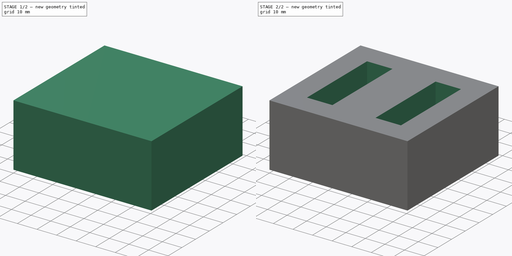
[diagram: build sequence overview — one tinted view per stage of 2, left to right]
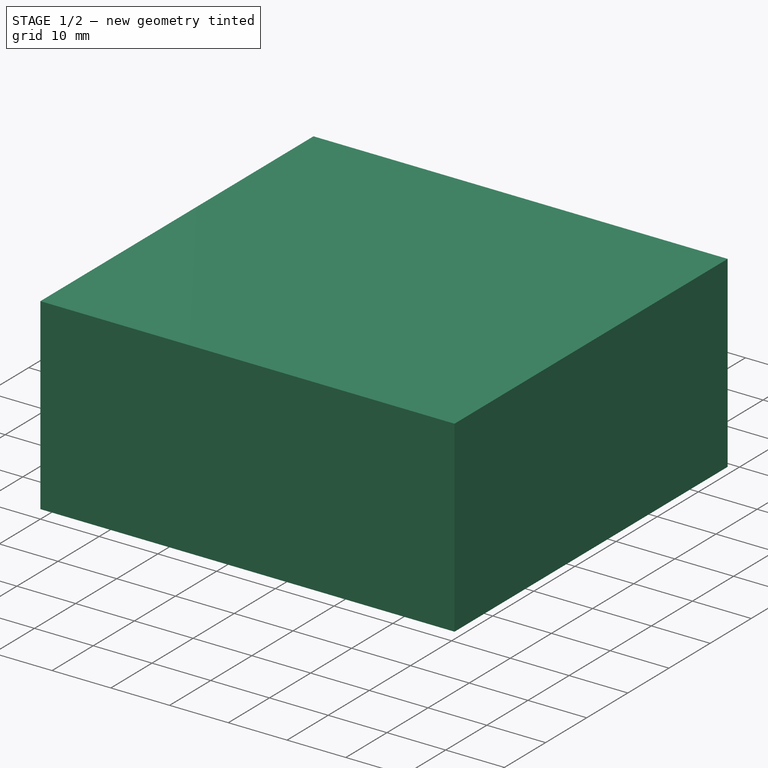
[diagram: stage 1 of 2 — iso view after this stage's code; geometry added in this stage tinted green]
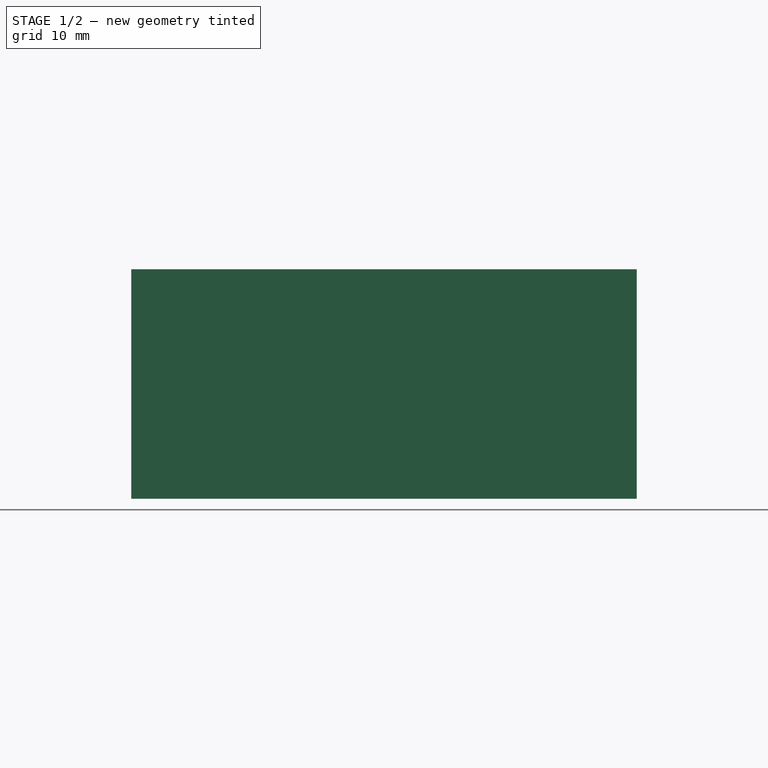
[diagram: stage 1 of 2 — front view after this stage's code; geometry added in this stage tinted green]
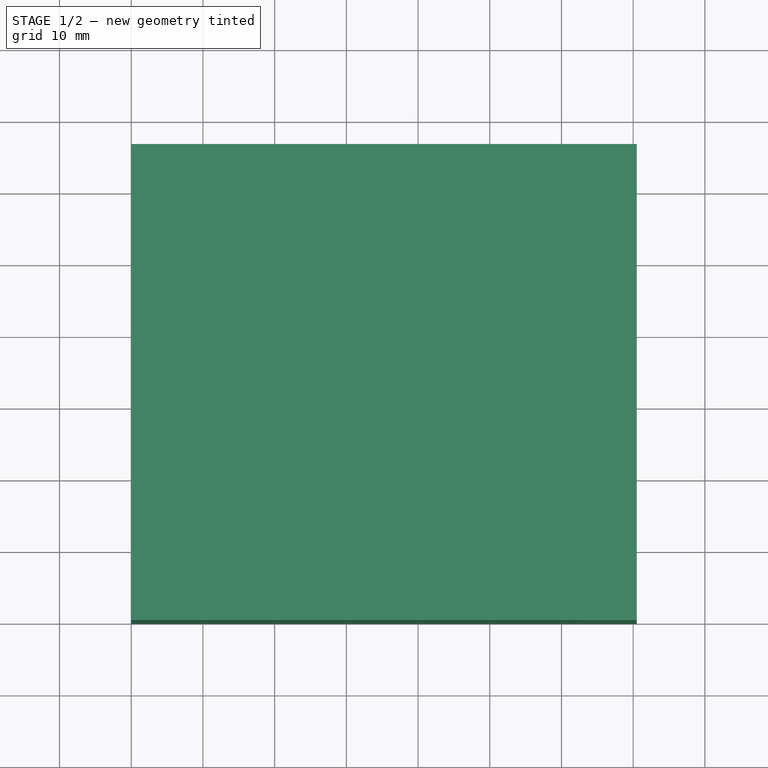
[diagram: stage 1 of 2 — top view after this stage's code; geometry added in this stage tinted green]
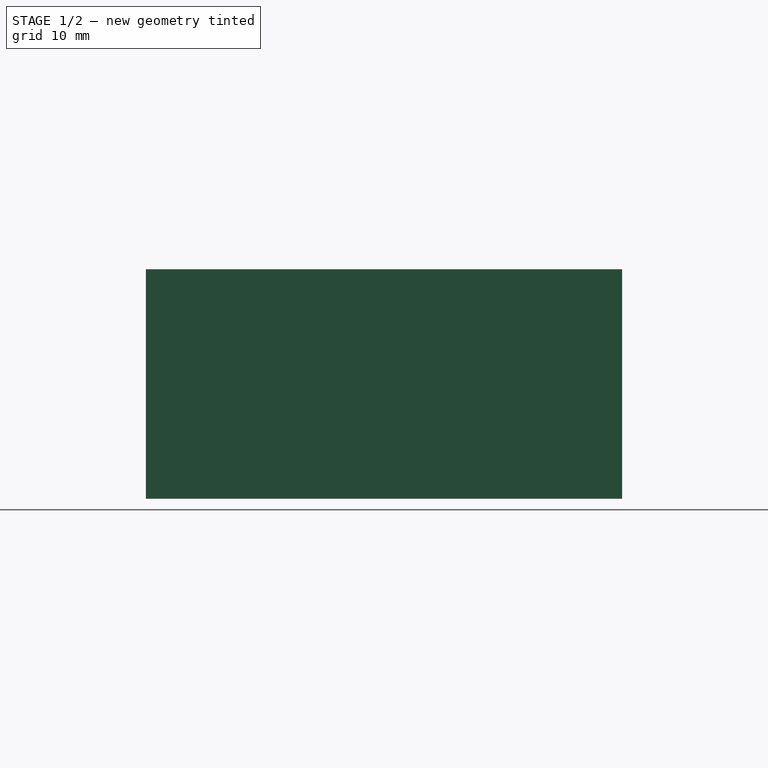
[diagram: stage 1 of 2 — right view after this stage's code; geometry added in this stage tinted green]
FCSTD DOCUMENT  (FreeCAD 0.15R4671 (Git))
Label: E71-31-32-H
License: All rights reserved
LicenseURL: http://en.wikipedia.org/wiki/All_rights_reserved
objects: Part::Box×1, Sketcher::SketchObject×1, PartDesign::Pocket×1
note: 4 computed .brp shape members not serialized (recipe doc carries the construction recipe); baked Part::Feature solids carry a one-line shape summary decoded from their .brp

FEATURE [Part::Box] Box  label="Cube"
  Height = 32
  Length = 70.5
  Width = 66.4
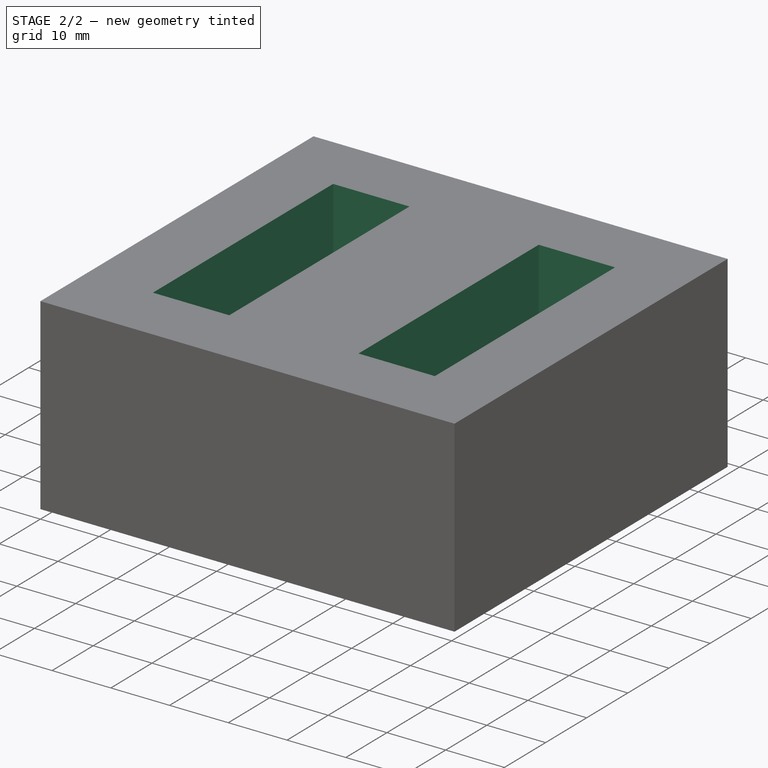
[diagram: stage 2 of 2 — iso view after this stage's code; geometry added in this stage tinted green]
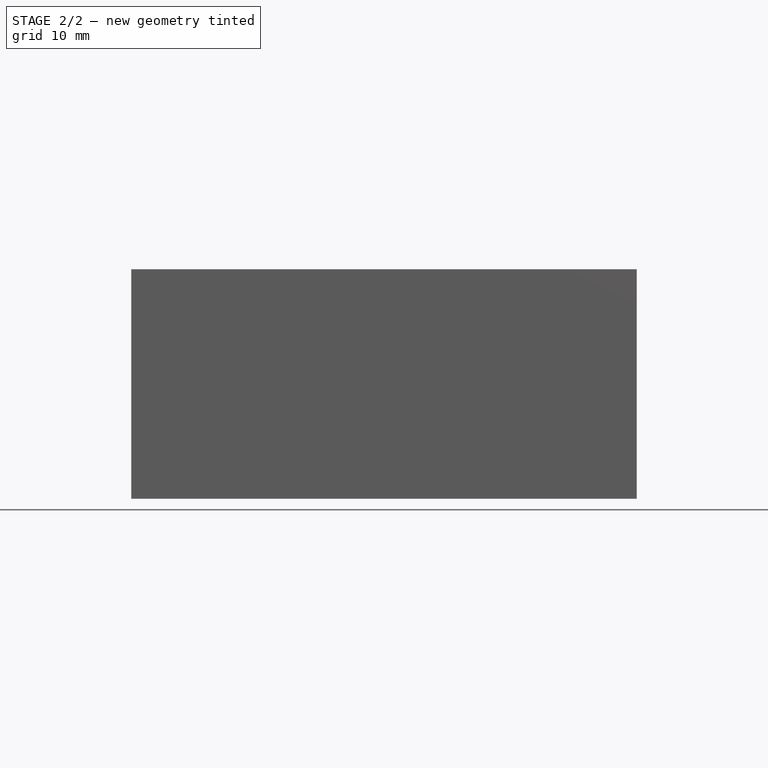
[diagram: stage 2 of 2 — front view after this stage's code; geometry added in this stage tinted green]
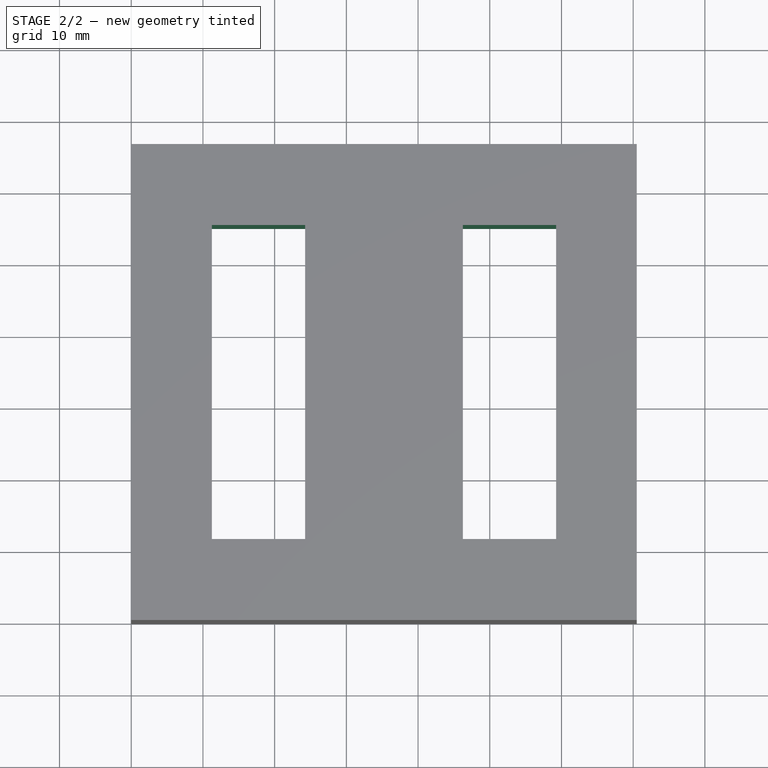
[diagram: stage 2 of 2 — top view after this stage's code; geometry added in this stage tinted green]
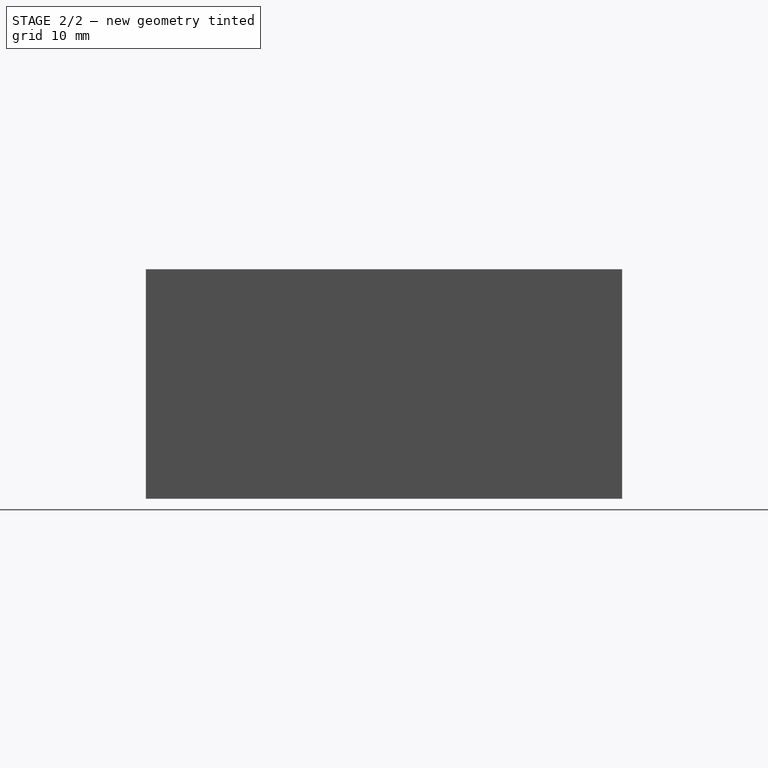
[diagram: stage 2 of 2 — right view after this stage's code; geometry added in this stage tinted green]
FEATURE [Sketcher::SketchObject] Sketch
  ExternalGeometry = -> [Box]
  Placement = pos=(0,0,32) rot=(0,0,1;0rad)
  Support = -> Box [Face6]
  sketch-geometry (17):
    g0: LineSegment StartX=35.25 StartY=0 StartZ=0 EndX=46.25 EndY=0 EndZ=0
    g1: LineSegment [constr] StartX=46.25 StartY=0 StartZ=0 EndX=46.25 EndY=66.4 EndZ=0
    g2: LineSegment [constr] StartX=59.25 StartY=0 StartZ=0 EndX=59.25 EndY=66.4 EndZ=0
    g3: LineSegment [constr] StartX=24.25 StartY=0 StartZ=0 EndX=24.25 EndY=66.4 EndZ=0
    g4: LineSegment [constr] StartX=11.25 StartY=0 StartZ=0 EndX=11.25 EndY=66.4 EndZ=0
    g5: LineSegment [constr] StartX=0 StartY=33.2 StartZ=0 EndX=70.5 EndY=33.2 EndZ=0
    g6: LineSegment [constr] StartX=35.25 StartY=0 StartZ=0 EndX=35.25 EndY=66.4 EndZ=0
    g7: LineSegment [constr] StartX=0 StartY=11.3 StartZ=0 EndX=70.5 EndY=11.3 EndZ=0
    g8: LineSegment [constr] StartX=0 StartY=55.1 StartZ=0 EndX=70.5 EndY=55.1 EndZ=0
    g9: LineSegment StartX=11.25 StartY=11.3 StartZ=0 EndX=24.25 EndY=11.3 EndZ=0
    g10: LineSegment StartX=24.25 StartY=11.3 StartZ=0 EndX=24.25 EndY=55.1 EndZ=0
    g11: LineSegment StartX=24.25 StartY=55.1 StartZ=0 EndX=11.25 EndY=55.1 EndZ=0
    g12: LineSegment StartX=11.25 StartY=55.1 StartZ=0 EndX=11.25 EndY=11.3 EndZ=0
    g13: LineSegment StartX=46.25 StartY=11.3 StartZ=0 EndX=59.25 EndY=11.3 EndZ=0
    g14: LineSegment StartX=59.25 StartY=11.3 StartZ=0 EndX=59.25 EndY=55.1 EndZ=0
    g15: LineSegment StartX=59.25 StartY=55.1 StartZ=0 EndX=46.25 EndY=55.1 EndZ=0
    g16: LineSegment StartX=46.25 StartY=55.1 StartZ=0 EndX=46.25 EndY=11.3 EndZ=0
  constraints (58):
    c: Horizontal(g0)
    c: Coincident(g1,g0)
    c: PointOnObject(g1,g-4)
    c: Vertical(g1)
    c: PointOnObject(g2,g-4)
    c: Vertical(g2)
    c: PointOnObject(g3,g-4)
    c: Vertical(g3)
    c: PointOnObject(g4,g-3)
    c: Vertical(g4)
    c: PointOnObject(g5,g-5)
    c: Horizontal(g5)
    c: DistanceY(g-1,g5) = 33.2
    c: PointOnObject(g6,g-4)
    c: Vertical(g6)
    c: DistanceX(g0,g3) = -11
    c: DistanceX(g0,g4) = -24
    c: DistanceX(g0,g0) = 11
    c: DistanceX(g2,g0) = -24
    c: PointOnObject(g7,g-6)
    c: Horizontal(g7)
    c: PointOnObject(g8,g-5)
    c: PointOnObject(g8,g-6)
    c: Horizontal(g8)
    c: DistanceY(g5,g8) = 21.9
    c: DistanceY(g5,g7) = -21.9
    c: PointOnObject(g9,g4)
    c: PointOnObject(g9,g7)
    c: Horizontal(g9)
    c: Coincident(g9,g10)
    c: PointOnObject(g10,g8)
    c: Vertical(g10)
    c: Coincident(g10,g11)
    c: PointOnObject(g11,g4)
    c: Horizontal(g11)
    c: Coincident(g11,g12)
    c: Coincident(g12,g9)
    c: PointOnObject(g13,g7)
    c: Horizontal(g13)
    c: Coincident(g13,g14)
    c: Vertical(g14)
    c: Coincident(g14,g15)
    c: Horizontal(g15)
    c: Coincident(g15,g16)
    c: Coincident(g16,g13)
    c: Vertical(g16)
    c: PointOnObject(g9,g3)
    c: PointOnObject(g14,g8)
    c: PointOnObject(g15,g1)
    c: PointOnObject(g13,g2)
    c: PointOnObject(g3,g-3)
    c: PointOnObject(g0,g-3)
    c: PointOnObject(g2,g-3)
    c: PointOnObject(g5,g-6)
    c: PointOnObject(g7,g-5)
    c: PointOnObject(g4,g-4)
    c: DistanceX(g-1,g0) = 35.25
    c: Coincident(g0,g6)
FEATURE [PartDesign::Pocket] Pocket
  Length = 32
  Sketch = -> Sketch
  Type = 0
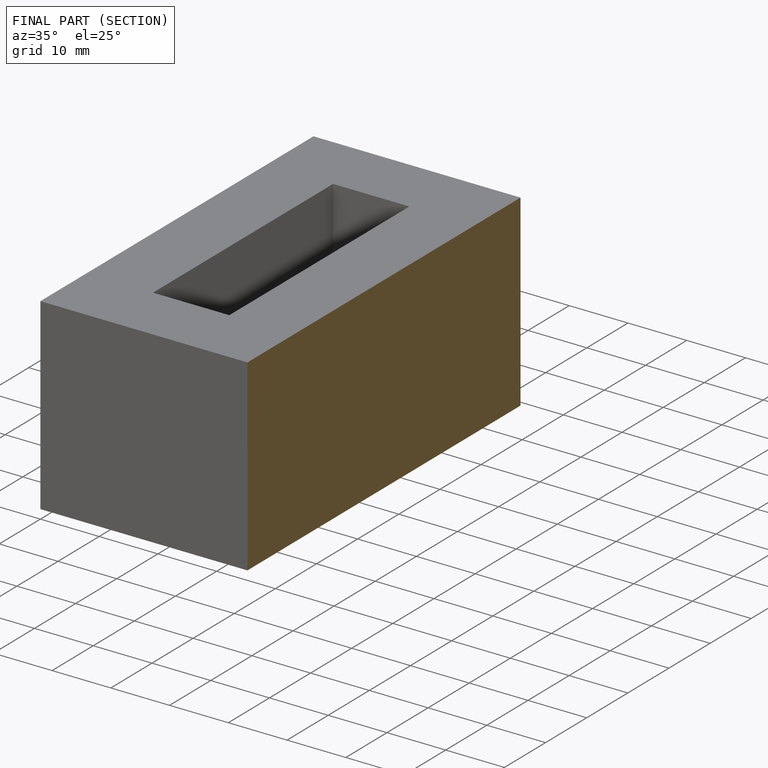
[diagram: finished part — half-section view (interior)]
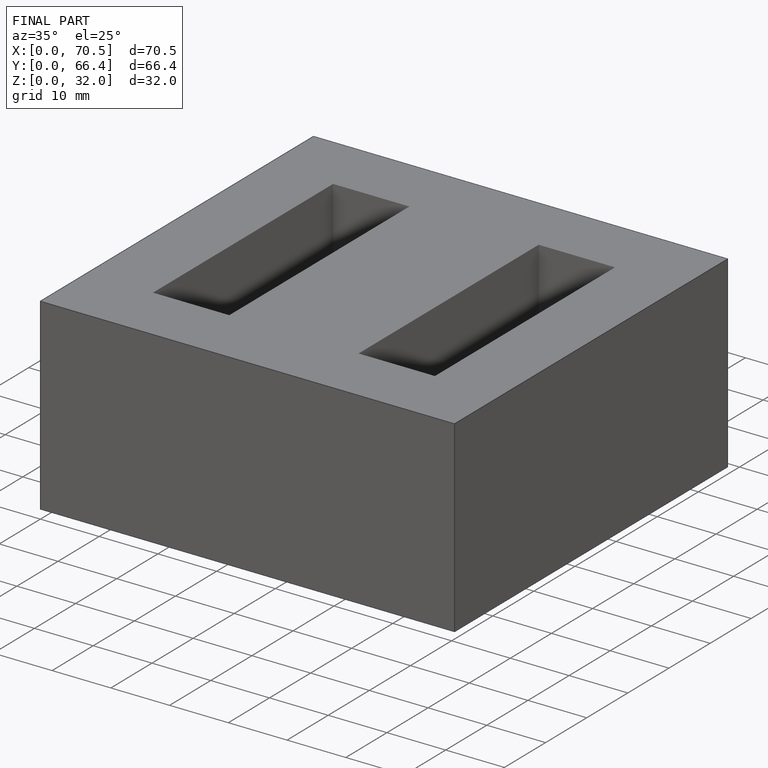
[diagram: finished part — iso view with bounding-box wireframe]
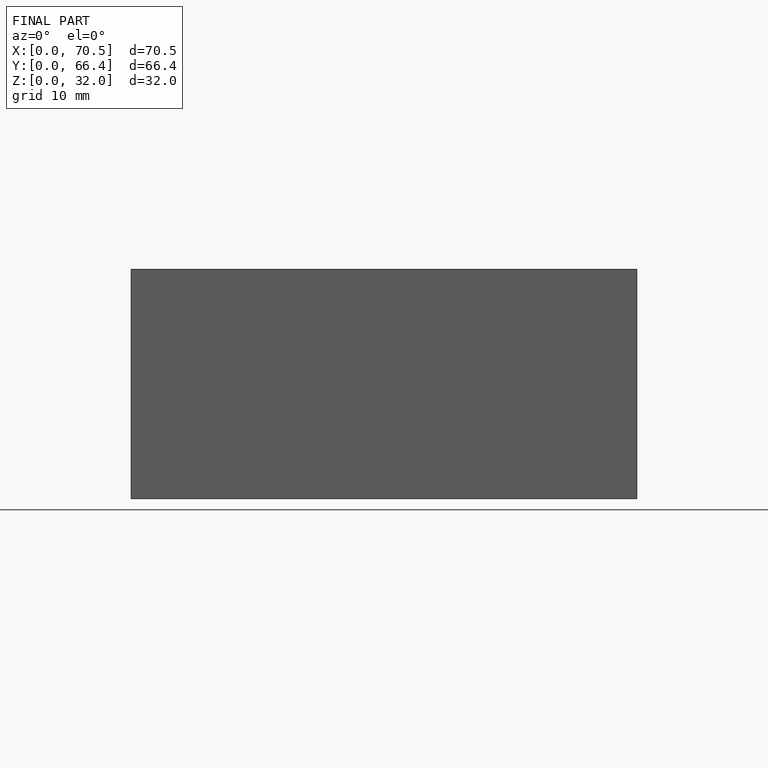
[diagram: finished part — front view with bounding-box wireframe]
